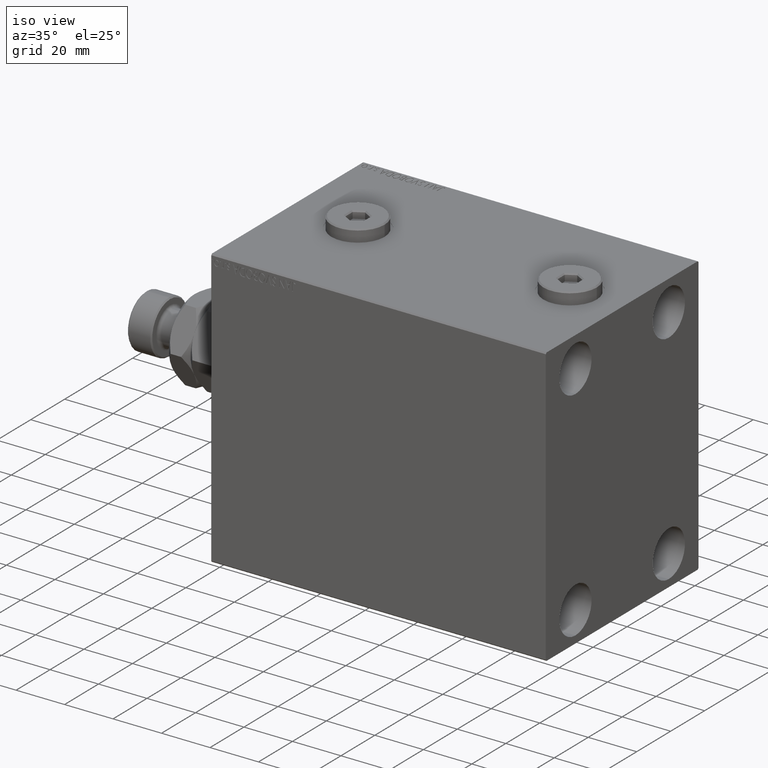
[diagram: clean part render]
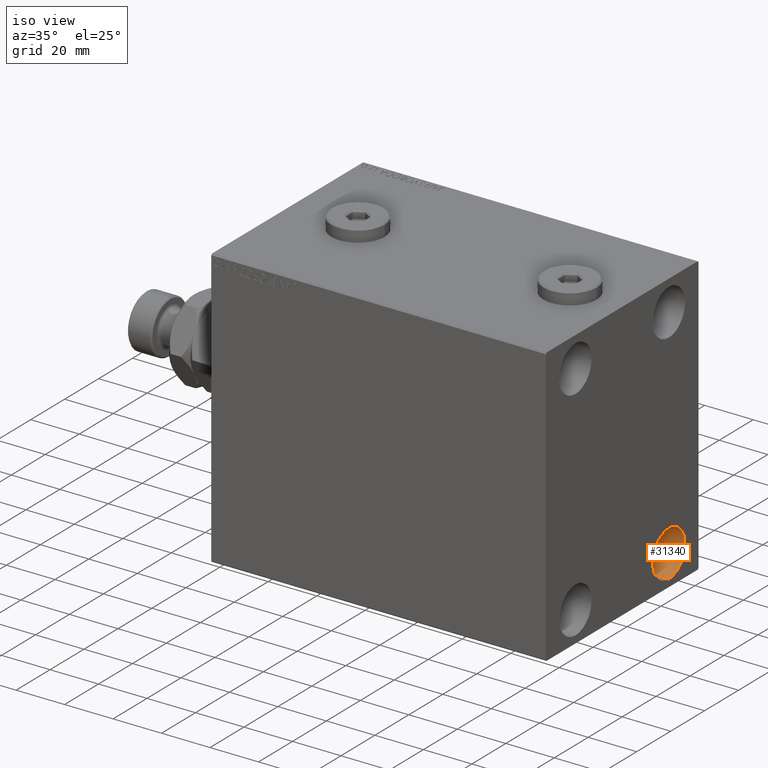
[diagram: same view with one face highlighted and labeled with its STEP entity id]
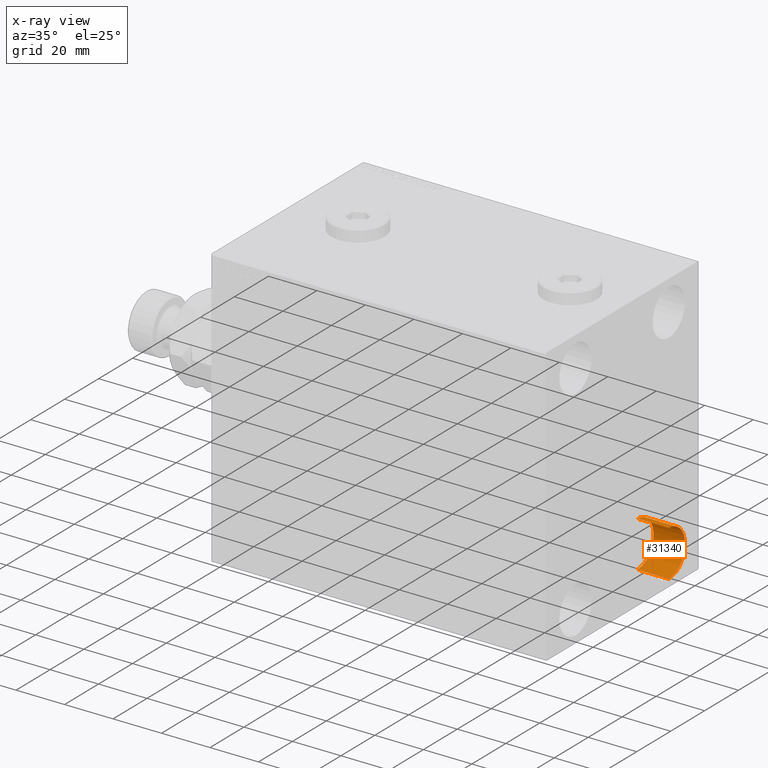
[diagram: x-ray of the same camera — body ghosted, the highlighted face saturated]
A machine part, iso view. The second image highlights one B-rep face of the part: STEP entity #31340.
The next image is the same camera in x-ray: the body ghosted, the highlighted face saturated — about 0% of this face is hidden behind the body in this view.
In plain terms, the highlighted cylindrical surface (edge-blend (fillet) strip) has radius 9.5 mm, axis along (1, 0, 0).
Its self-contained STEP definition (entity closure, byte-faithful):
#2203 = EDGE_CURVE ( 'NONE', #44685, #36663, #40321, .T. ) ;
#2444 = CARTESIAN_POINT ( 'NONE',  ( 125.0000000000000000, 27.49999999999998934, -35.49999999999998579 ) ) ;
#2857 = EDGE_CURVE ( 'NONE', #44685, #29460, #20990, .T. ) ;
#4691 = CARTESIAN_POINT ( 'NONE',  ( 125.0000000000000000, 27.49999999999998934, -35.49999999999998579 ) ) ;
#8927 = CYLINDRICAL_SURFACE ( 'NONE', #23461, 9.500000000000001776 ) ;
#9152 = DIRECTION ( 'NONE',  ( 1.000000000000000000, -0.000000000000000000, -0.000000000000000000 ) ) ;
#9962 = DIRECTION ( 'NONE',  ( -1.000000000000000000, -0.000000000000000000, -0.000000000000000000 ) ) ;
#9992 = VECTOR ( 'NONE', #27861, 1000.000000000000000 ) ;
#12052 = CARTESIAN_POINT ( 'NONE',  ( 138.0000000000000000, 27.49999999999998934, -54.49999999999998579 ) ) ;
#13789 = DIRECTION ( 'NONE',  ( -1.000000000000000000, -0.000000000000000000, -0.000000000000000000 ) ) ;
#14493 = DIRECTION ( 'NONE',  ( 0.000000000000000000, 0.000000000000000000, 1.000000000000000000 ) ) ;
#17103 = DIRECTION ( 'NONE',  ( 0.000000000000000000, 0.000000000000000000, 1.000000000000000000 ) ) ;
#20990 = LINE ( 'NONE', #2444, #9992 ) ;
#21307 = CARTESIAN_POINT ( 'NONE',  ( 125.0000000000000000, 27.49999999999998934, -54.49999999999998579 ) ) ;
#21348 = AXIS2_PLACEMENT_3D ( 'NONE', #24694, #9962, #17103 ) ;
#21471 = ORIENTED_EDGE ( 'NONE', *, *, #40358, .T. ) ;
#21826 = ORIENTED_EDGE ( 'NONE', *, *, #2203, .T. ) ;
#23461 = AXIS2_PLACEMENT_3D ( 'NONE', #45971, #9152, #23650 ) ;
#23650 = DIRECTION ( 'NONE',  ( 0.000000000000000000, 0.000000000000000000, -1.000000000000000000 ) ) ;
#24694 = CARTESIAN_POINT ( 'NONE',  ( 138.0000000000000000, 27.49999999999998934, -44.99999999999998579 ) ) ;
#27861 = DIRECTION ( 'NONE',  ( 1.000000000000000000, -0.000000000000000000, -0.000000000000000000 ) ) ;
#28104 = VECTOR ( 'NONE', #43994, 1000.000000000000000 ) ;
#29460 = VERTEX_POINT ( 'NONE', #41118 ) ;
#31340 = ADVANCED_FACE ( 'NONE', ( #41699 ), #8927, .F. ) ;
#33307 = LINE ( 'NONE', #37328, #28104 ) ;
#33659 = VERTEX_POINT ( 'NONE', #12052 ) ;
#34996 = CIRCLE ( 'NONE', #21348, 9.500000000000001776 ) ;
#35760 = AXIS2_PLACEMENT_3D ( 'NONE', #46337, #13789, #14493 ) ;
#36663 = VERTEX_POINT ( 'NONE', #21307 ) ;
#37157 = EDGE_LOOP ( 'NONE', ( #45900, #21826, #21471, #39733 ) ) ;
#37328 = CARTESIAN_POINT ( 'NONE',  ( 125.0000000000000000, 27.49999999999998934, -54.49999999999998579 ) ) ;
#39733 = ORIENTED_EDGE ( 'NONE', *, *, #41266, .F. ) ;
#40321 = CIRCLE ( 'NONE', #35760, 9.500000000000001776 ) ;
#40358 = EDGE_CURVE ( 'NONE', #36663, #33659, #33307, .T. ) ;
#41118 = CARTESIAN_POINT ( 'NONE',  ( 138.0000000000000000, 27.49999999999998934, -35.49999999999998579 ) ) ;
#41266 = EDGE_CURVE ( 'NONE', #29460, #33659, #34996, .T. ) ;
#41699 = FACE_OUTER_BOUND ( 'NONE', #37157, .T. ) ;
#43994 = DIRECTION ( 'NONE',  ( 1.000000000000000000, -0.000000000000000000, -0.000000000000000000 ) ) ;
#44685 = VERTEX_POINT ( 'NONE', #4691 ) ;
#45900 = ORIENTED_EDGE ( 'NONE', *, *, #2857, .F. ) ;
#45971 = CARTESIAN_POINT ( 'NONE',  ( 125.0000000000000000, 27.49999999999998934, -44.99999999999998579 ) ) ;
#46337 = CARTESIAN_POINT ( 'NONE',  ( 125.0000000000000000, 27.49999999999998934, -44.99999999999998579 ) ) ;